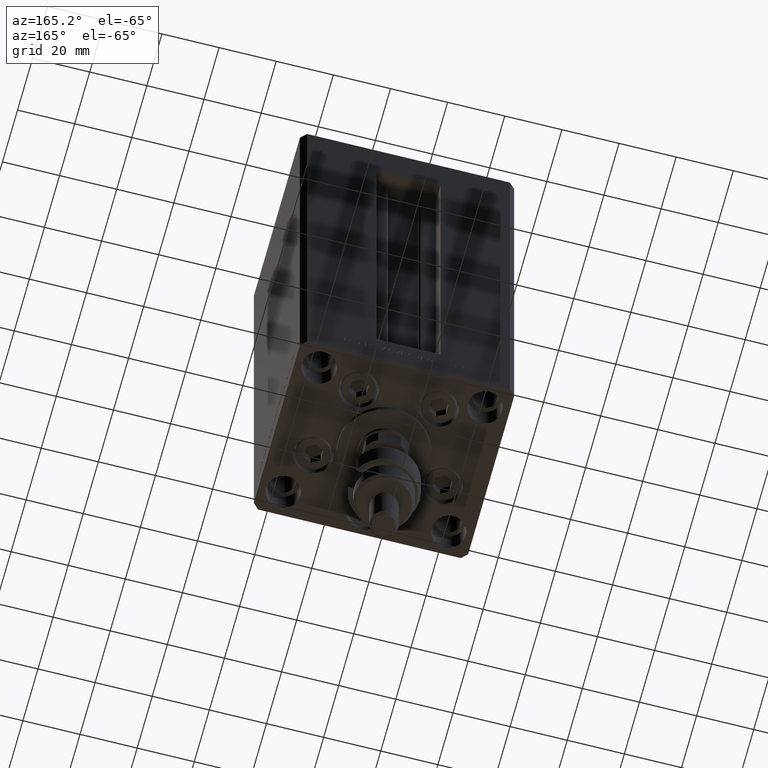
[diagram: clean part render]
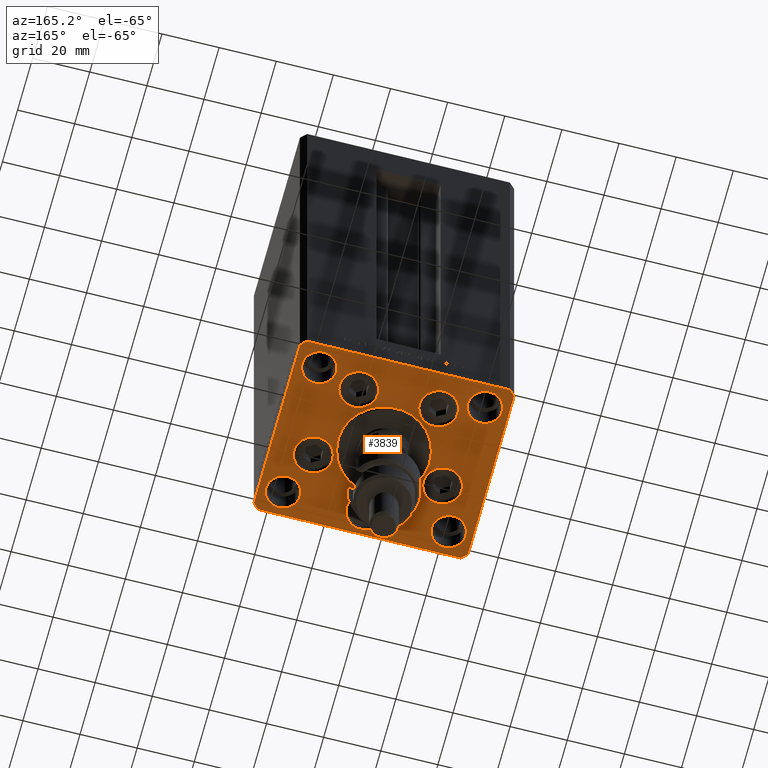
[diagram: same view with one face highlighted and labeled with its STEP entity id]
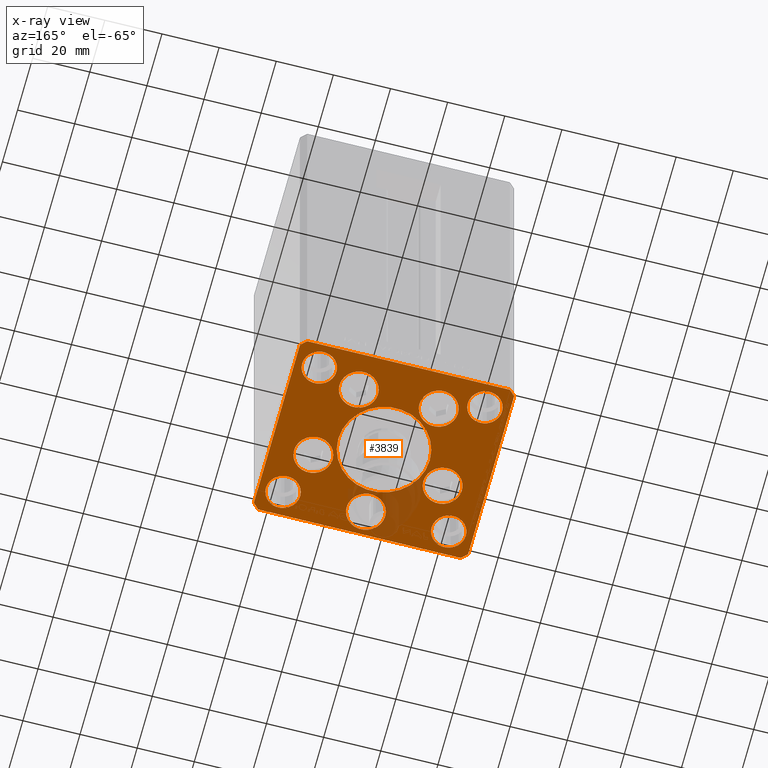
[diagram: x-ray of the same camera — body ghosted, the highlighted face saturated]
A machine part, auxiliary view. The second image highlights one B-rep face of the part: STEP entity #3839.
The next image is the same camera in x-ray: the body ghosted, the highlighted face saturated — about 7% of this face is hidden behind the body in this view.
In plain terms, the highlighted planar face has unit normal (0, 0, -1).
Its self-contained STEP definition (entity closure, byte-faithful):
#2 = CARTESIAN_POINT ( 'NONE',  ( -37.50000000000000000, -30.50000000000004263, 0.000000000000000000 ) ) ;
#47 = DIRECTION ( 'NONE',  ( -0.000000000000000000, 0.000000000000000000, 1.000000000000000000 ) ) ;
#294 = CARTESIAN_POINT ( 'NONE',  ( -29.00000000000000000, 24.00000000000000711, 0.000000000000000000 ) ) ;
#399 = DIRECTION ( 'NONE',  ( 0.000000000000000000, 0.000000000000000000, 1.000000000000000000 ) ) ;
#1053 = CARTESIAN_POINT ( 'NONE',  ( -37.50000000000000000, -30.50000000000004263, 0.000000000000000000 ) ) ;
#1242 = CARTESIAN_POINT ( 'NONE',  ( 0.000000000000000000, -24.00000000000001066, 0.000000000000000000 ) ) ;
#1584 = DIRECTION ( 'NONE',  ( 1.000000000000000000, 1.172770800660376149E-15, 0.000000000000000000 ) ) ;
#1617 = VERTEX_POINT ( 'NONE', #45623 ) ;
#1886 = CARTESIAN_POINT ( 'NONE',  ( 23.00000000000000711, -23.99999999999999645, 0.000000000000000000 ) ) ;
#1946 = EDGE_CURVE ( 'NONE', #15458, #21228, #35231, .T. ) ;
#2140 = CARTESIAN_POINT ( 'NONE',  ( -7.241068579633241242, 19.50000000000000000, 0.000000000000000000 ) ) ;
#2332 = LINE ( 'NONE', #10571, #41514 ) ;
#3001 = DIRECTION ( 'NONE',  ( 0.7071067811865463515, 0.7071067811865487940, 0.000000000000000000 ) ) ;
#3839 = ADVANCED_FACE ( 'NONE', ( #50193, #30693, #46338, #6256, #26323, #41980, #11135, #37362, #34282, #46089, #10887 ), #27075, .T. ) ;
#3920 = CARTESIAN_POINT ( 'NONE',  ( -29.37741699796953654, -8.000000000000000000, 0.000000000000000000 ) ) ;
#4396 = DIRECTION ( 'NONE',  ( -1.000000000000000000, -1.954618001100627573E-16, 0.000000000000000000 ) ) ;
#4409 = EDGE_CURVE ( 'NONE', #7306, #36765, #28787, .T. ) ;
#4423 = CARTESIAN_POINT ( 'NONE',  ( 0.000000000000000000, 0.000000000000000000, 0.000000000000000000 ) ) ;
#4595 = CARTESIAN_POINT ( 'NONE',  ( 35.50000000000001421, -32.49999999999992184, 0.000000000000000000 ) ) ;
#4623 = AXIS2_PLACEMENT_3D ( 'NONE', #44744, #9526, #25228 ) ;
#4839 = DIRECTION ( 'NONE',  ( 0.000000000000000000, 0.000000000000000000, 1.000000000000000000 ) ) ;
#5037 = CARTESIAN_POINT ( 'NONE',  ( -20.74106857963324302, 19.50000000000000000, 0.000000000000000000 ) ) ;
#5355 = EDGE_LOOP ( 'NONE', ( #35478, #14513 ) ) ;
#5447 = CARTESIAN_POINT ( 'NONE',  ( -35.50000000000001421, -32.50000000000000711, 0.000000000000000000 ) ) ;
#5790 = CIRCLE ( 'NONE', #40251, 6.750000000000000000 ) ;
#5800 = AXIS2_PLACEMENT_3D ( 'NONE', #46483, #26731, #38784 ) ;
#5864 = DIRECTION ( 'NONE',  ( 0.000000000000000000, 0.000000000000000000, 1.000000000000000000 ) ) ;
#5941 = AXIS2_PLACEMENT_3D ( 'NONE', #25589, #21983, #25078 ) ;
#6030 = VECTOR ( 'NONE', #30248, 1000.000000000000000 ) ;
#6256 = FACE_BOUND ( 'NONE', #43877, .T. ) ;
#6299 = ORIENTED_EDGE ( 'NONE', *, *, #48997, .F. ) ;
#6327 = EDGE_LOOP ( 'NONE', ( #17307, #9094, #23147, #7057, #11703, #28510, #10873, #12891 ) ) ;
#6527 = VERTEX_POINT ( 'NONE', #22119 ) ;
#6918 = AXIS2_PLACEMENT_3D ( 'NONE', #294, #50438, #35256 ) ;
#7057 = ORIENTED_EDGE ( 'NONE', *, *, #31710, .T. ) ;
#7240 = AXIS2_PLACEMENT_3D ( 'NONE', #35620, #399, #35866 ) ;
#7306 = VERTEX_POINT ( 'NONE', #47139 ) ;
#7446 = VERTEX_POINT ( 'NONE', #33494 ) ;
#7509 = VERTEX_POINT ( 'NONE', #26577 ) ;
#7721 = CIRCLE ( 'NONE', #6918, 6.000000000000001776 ) ;
#7726 = ORIENTED_EDGE ( 'NONE', *, *, #37196, .F. ) ;
#8069 = ORIENTED_EDGE ( 'NONE', *, *, #4409, .F. ) ;
#8167 = AXIS2_PLACEMENT_3D ( 'NONE', #34091, #25621, #9651 ) ;
#8198 = DIRECTION ( 'NONE',  ( 0.000000000000000000, 0.000000000000000000, 1.000000000000000000 ) ) ;
#8369 = VERTEX_POINT ( 'NONE', #41535 ) ;
#8388 = CARTESIAN_POINT ( 'NONE',  ( -35.50000000000000711, 32.49999999999997868, 0.000000000000000000 ) ) ;
#8416 = CARTESIAN_POINT ( 'NONE',  ( -22.62741699796953299, -8.000000000000000000, 0.000000000000000000 ) ) ;
#8642 = VERTEX_POINT ( 'NONE', #2140 ) ;
#8694 = VECTOR ( 'NONE', #29593, 1000.000000000000000 ) ;
#8842 = AXIS2_PLACEMENT_3D ( 'NONE', #41067, #18203, #45693 ) ;
#9094 = ORIENTED_EDGE ( 'NONE', *, *, #35499, .T. ) ;
#9526 = DIRECTION ( 'NONE',  ( 0.000000000000000000, 0.000000000000000000, 1.000000000000000000 ) ) ;
#9590 = VERTEX_POINT ( 'NONE', #50462 ) ;
#9651 = DIRECTION ( 'NONE',  ( 1.000000000000000000, 0.000000000000000000, 0.000000000000000000 ) ) ;
#10177 = CARTESIAN_POINT ( 'NONE',  ( 0.000000000000000000, -6.938893903907228378E-15, 0.000000000000000000 ) ) ;
#10286 = EDGE_LOOP ( 'NONE', ( #34785, #44482 ) ) ;
#10360 = CIRCLE ( 'NONE', #39083, 6.750000000001552536 ) ;
#10571 = CARTESIAN_POINT ( 'NONE',  ( 37.50000000000000711, -30.49999999999992895, 0.000000000000000000 ) ) ;
#10608 = VERTEX_POINT ( 'NONE', #47171 ) ;
#10844 = VECTOR ( 'NONE', #36651, 1000.000000000000000 ) ;
#10873 = ORIENTED_EDGE ( 'NONE', *, *, #11088, .T. ) ;
#10887 = FACE_OUTER_BOUND ( 'NONE', #6327, .T. ) ;
#10968 = CIRCLE ( 'NONE', #34746, 6.750000000001552536 ) ;
#11088 = EDGE_CURVE ( 'NONE', #47593, #41637, #32057, .T. ) ;
#11100 = CARTESIAN_POINT ( 'NONE',  ( 37.50000000000000711, -30.49999999999992895, 0.000000000000000000 ) ) ;
#11135 = FACE_BOUND ( 'NONE', #5355, .T. ) ;
#11307 = VERTEX_POINT ( 'NONE', #11100 ) ;
#11703 = ORIENTED_EDGE ( 'NONE', *, *, #27699, .T. ) ;
#11738 = EDGE_CURVE ( 'NONE', #40236, #32317, #45323, .T. ) ;
#11911 = AXIS2_PLACEMENT_3D ( 'NONE', #8416, #47721, #28708 ) ;
#12206 = DIRECTION ( 'NONE',  ( 0.000000000000000000, 0.000000000000000000, 1.000000000000000000 ) ) ;
#12427 = EDGE_CURVE ( 'NONE', #44794, #47593, #31151, .T. ) ;
#12891 = ORIENTED_EDGE ( 'NONE', *, *, #28415, .T. ) ;
#13445 = AXIS2_PLACEMENT_3D ( 'NONE', #34943, #8198, #50611 ) ;
#14191 = DIRECTION ( 'NONE',  ( 0.000000000000000000, 0.000000000000000000, 1.000000000000000000 ) ) ;
#14279 = ORIENTED_EDGE ( 'NONE', *, *, #39720, .F. ) ;
#14513 = ORIENTED_EDGE ( 'NONE', *, *, #11738, .F. ) ;
#14975 = EDGE_LOOP ( 'NONE', ( #18029, #14279 ) ) ;
#15040 = EDGE_CURVE ( 'NONE', #24973, #24400, #18896, .T. ) ;
#15326 = AXIS2_PLACEMENT_3D ( 'NONE', #28156, #12206, #20192 ) ;
#15435 = CARTESIAN_POINT ( 'NONE',  ( 29.00000000000000000, 24.00000000000000355, 0.000000000000000000 ) ) ;
#15458 = VERTEX_POINT ( 'NONE', #19258 ) ;
#15914 = CIRCLE ( 'NONE', #20028, 6.000000000000001776 ) ;
#16201 = VECTOR ( 'NONE', #1584, 1000.000000000000000 ) ;
#16442 = EDGE_LOOP ( 'NONE', ( #6299, #27962 ) ) ;
#16487 = EDGE_CURVE ( 'NONE', #40775, #8642, #32063, .T. ) ;
#17307 = ORIENTED_EDGE ( 'NONE', *, *, #36949, .T. ) ;
#17320 = VERTEX_POINT ( 'NONE', #34638 ) ;
#18029 = ORIENTED_EDGE ( 'NONE', *, *, #40854, .F. ) ;
#18203 = DIRECTION ( 'NONE',  ( 0.000000000000000000, 0.000000000000000000, 1.000000000000000000 ) ) ;
#18742 = CARTESIAN_POINT ( 'NONE',  ( 35.00000000000000000, 24.00000000000000355, 0.000000000000000000 ) ) ;
#18896 = CIRCLE ( 'NONE', #29570, 6.749999999999999112 ) ;
#19232 = VECTOR ( 'NONE', #4396, 1000.000000000000000 ) ;
#19258 = CARTESIAN_POINT ( 'NONE',  ( 15.87741699796952410, -8.000000000000000000, 0.000000000000000000 ) ) ;
#19600 = DIRECTION ( 'NONE',  ( 1.000000000000000000, 0.000000000000000000, 0.000000000000000000 ) ) ;
#19784 = DIRECTION ( 'NONE',  ( 0.000000000000000000, 0.000000000000000000, 1.000000000000000000 ) ) ;
#19885 = ORIENTED_EDGE ( 'NONE', *, *, #28509, .F. ) ;
#19897 = ORIENTED_EDGE ( 'NONE', *, *, #36879, .F. ) ;
#20028 = AXIS2_PLACEMENT_3D ( 'NONE', #15435, #31379, #27522 ) ;
#20069 = VECTOR ( 'NONE', #31167, 1000.000000000000000 ) ;
#20192 = DIRECTION ( 'NONE',  ( 1.000000000000000000, 0.000000000000000000, 0.000000000000000000 ) ) ;
#20479 = DIRECTION ( 'NONE',  ( 1.000000000000000000, 0.000000000000000000, 0.000000000000000000 ) ) ;
#20613 = LINE ( 'NONE', #1053, #8694 ) ;
#20817 = DIRECTION ( 'NONE',  ( 0.000000000000000000, 0.000000000000000000, 1.000000000000000000 ) ) ;
#21147 = CARTESIAN_POINT ( 'NONE',  ( 29.37741699796954364, -8.000000000000000000, 0.000000000000000000 ) ) ;
#21228 = VERTEX_POINT ( 'NONE', #21147 ) ;
#21315 = EDGE_LOOP ( 'NONE', ( #19885, #34054 ) ) ;
#21370 = AXIS2_PLACEMENT_3D ( 'NONE', #4423, #47, #31929 ) ;
#21673 = CIRCLE ( 'NONE', #13445, 6.749999999999997335 ) ;
#21702 = DIRECTION ( 'NONE',  ( 0.000000000000000000, 0.000000000000000000, 1.000000000000000000 ) ) ;
#21983 = DIRECTION ( 'NONE',  ( 0.000000000000000000, 0.000000000000000000, 1.000000000000000000 ) ) ;
#22029 = EDGE_LOOP ( 'NONE', ( #37445, #40663 ) ) ;
#22119 = CARTESIAN_POINT ( 'NONE',  ( 37.50000000000000711, 30.50000000000001421, 0.000000000000000000 ) ) ;
#22623 = CARTESIAN_POINT ( 'NONE',  ( -6.750000000001552536, -24.00000000000001066, 0.000000000000000000 ) ) ;
#23147 = ORIENTED_EDGE ( 'NONE', *, *, #33163, .T. ) ;
#23209 = EDGE_CURVE ( 'NONE', #36765, #7306, #38733, .T. ) ;
#23464 = DIRECTION ( 'NONE',  ( 0.000000000000000000, 0.000000000000000000, 1.000000000000000000 ) ) ;
#23548 = VERTEX_POINT ( 'NONE', #1886 ) ;
#23707 = CARTESIAN_POINT ( 'NONE',  ( -13.99106857963324124, 19.50000000000000000, 0.000000000000000000 ) ) ;
#23848 = ORIENTED_EDGE ( 'NONE', *, *, #1946, .F. ) ;
#24200 = CARTESIAN_POINT ( 'NONE',  ( 35.50000000000000000, 32.49999999999999289, 0.000000000000000000 ) ) ;
#24400 = VERTEX_POINT ( 'NONE', #3920 ) ;
#24973 = VERTEX_POINT ( 'NONE', #50017 ) ;
#25078 = DIRECTION ( 'NONE',  ( 1.000000000000000000, 0.000000000000000000, 0.000000000000000000 ) ) ;
#25190 = CIRCLE ( 'NONE', #15326, 5.999999999999998224 ) ;
#25228 = DIRECTION ( 'NONE',  ( 1.000000000000000000, 0.000000000000000000, 0.000000000000000000 ) ) ;
#25589 = CARTESIAN_POINT ( 'NONE',  ( 29.00000000000000000, 24.00000000000000355, 0.000000000000000000 ) ) ;
#25621 = DIRECTION ( 'NONE',  ( 0.000000000000000000, 0.000000000000000000, 1.000000000000000000 ) ) ;
#25969 = VECTOR ( 'NONE', #3001, 1000.000000000000000 ) ;
#26188 = DIRECTION ( 'NONE',  ( 1.000000000000000000, 0.000000000000000000, 0.000000000000000000 ) ) ;
#26323 = FACE_BOUND ( 'NONE', #44936, .T. ) ;
#26542 = VERTEX_POINT ( 'NONE', #40198 ) ;
#26577 = CARTESIAN_POINT ( 'NONE',  ( -23.00000000000000000, -23.99999999999999645, 0.000000000000000000 ) ) ;
#26673 = EDGE_CURVE ( 'NONE', #41500, #44114, #10968, .T. ) ;
#26731 = DIRECTION ( 'NONE',  ( 0.000000000000000000, 0.000000000000000000, 1.000000000000000000 ) ) ;
#27075 = PLANE ( 'NONE',  #21370 ) ;
#27149 = EDGE_CURVE ( 'NONE', #32317, #40236, #15914, .T. ) ;
#27522 = DIRECTION ( 'NONE',  ( 1.000000000000000000, 0.000000000000000000, 0.000000000000000000 ) ) ;
#27699 = EDGE_CURVE ( 'NONE', #6527, #44794, #38211, .T. ) ;
#27753 = DIRECTION ( 'NONE',  ( 1.000000000000000000, 0.000000000000000000, 0.000000000000000000 ) ) ;
#27810 = EDGE_CURVE ( 'NONE', #26542, #1617, #21673, .T. ) ;
#27843 = CARTESIAN_POINT ( 'NONE',  ( 37.50000000000000711, 30.50000000000001421, 0.000000000000000000 ) ) ;
#27962 = ORIENTED_EDGE ( 'NONE', *, *, #16487, .F. ) ;
#28116 = ORIENTED_EDGE ( 'NONE', *, *, #43387, .F. ) ;
#28156 = CARTESIAN_POINT ( 'NONE',  ( 29.00000000000000355, -23.99999999999999645, 0.000000000000000000 ) ) ;
#28204 = CARTESIAN_POINT ( 'NONE',  ( -29.00000000000000000, 24.00000000000000711, 0.000000000000000000 ) ) ;
#28415 = EDGE_CURVE ( 'NONE', #41637, #44629, #43475, .T. ) ;
#28509 = EDGE_CURVE ( 'NONE', #8369, #9590, #7721, .T. ) ;
#28510 = ORIENTED_EDGE ( 'NONE', *, *, #12427, .T. ) ;
#28708 = DIRECTION ( 'NONE',  ( 1.000000000000000000, 0.000000000000000000, 0.000000000000000000 ) ) ;
#28787 = CIRCLE ( 'NONE', #35346, 16.00000000000000355 ) ;
#28968 = VERTEX_POINT ( 'NONE', #4595 ) ;
#29364 = DIRECTION ( 'NONE',  ( 1.000000000000000000, 0.000000000000000000, 0.000000000000000000 ) ) ;
#29570 = AXIS2_PLACEMENT_3D ( 'NONE', #48869, #14191, #29364 ) ;
#29593 = DIRECTION ( 'NONE',  ( 0.7071067811865512365, -0.7071067811865439090, 0.000000000000000000 ) ) ;
#29804 = CARTESIAN_POINT ( 'NONE',  ( 6.750000000001552536, -24.00000000000001066, 0.000000000000000000 ) ) ;
#30243 = EDGE_CURVE ( 'NONE', #24400, #24973, #44727, .T. ) ;
#30248 = DIRECTION ( 'NONE',  ( -0.7071067811865524577, 0.7071067811865426878, 0.000000000000000000 ) ) ;
#30328 = AXIS2_PLACEMENT_3D ( 'NONE', #31099, #19784, #27753 ) ;
#30693 = FACE_BOUND ( 'NONE', #16442, .T. ) ;
#30920 = CIRCLE ( 'NONE', #4623, 5.999999999999998224 ) ;
#30963 = CIRCLE ( 'NONE', #47320, 6.749999999999997335 ) ;
#31033 = CIRCLE ( 'NONE', #8842, 6.000000000000001776 ) ;
#31099 = CARTESIAN_POINT ( 'NONE',  ( 22.62741699796953299, -8.000000000000000000, 0.000000000000000000 ) ) ;
#31151 = LINE ( 'NONE', #24200, #19232 ) ;
#31167 = DIRECTION ( 'NONE',  ( 2.275047181608926165E-16, -1.000000000000000000, 0.000000000000000000 ) ) ;
#31379 = DIRECTION ( 'NONE',  ( 0.000000000000000000, 0.000000000000000000, 1.000000000000000000 ) ) ;
#31710 = EDGE_CURVE ( 'NONE', #11307, #6527, #2332, .T. ) ;
#31929 = DIRECTION ( 'NONE',  ( 1.000000000000000000, 0.000000000000000000, 0.000000000000000000 ) ) ;
#32057 = LINE ( 'NONE', #32790, #10844 ) ;
#32063 = CIRCLE ( 'NONE', #5800, 6.750000000000000000 ) ;
#32317 = VERTEX_POINT ( 'NONE', #18742 ) ;
#32789 = DIRECTION ( 'NONE',  ( 1.000000000000000000, 0.000000000000000000, 0.000000000000000000 ) ) ;
#32790 = CARTESIAN_POINT ( 'NONE',  ( -35.50000000000000711, 32.49999999999997868, 0.000000000000000000 ) ) ;
#33124 = CARTESIAN_POINT ( 'NONE',  ( 0.000000000000000000, -6.938893903907228378E-15, 0.000000000000000000 ) ) ;
#33163 = EDGE_CURVE ( 'NONE', #28968, #11307, #37449, .T. ) ;
#33494 = CARTESIAN_POINT ( 'NONE',  ( -35.00000000000000000, -23.99999999999999645, 0.000000000000000000 ) ) ;
#33595 = CIRCLE ( 'NONE', #48362, 6.000000000000001776 ) ;
#34054 = ORIENTED_EDGE ( 'NONE', *, *, #40791, .F. ) ;
#34091 = CARTESIAN_POINT ( 'NONE',  ( -29.00000000000000000, -23.99999999999999645, 0.000000000000000000 ) ) ;
#34282 = FACE_BOUND ( 'NONE', #14975, .T. ) ;
#34638 = CARTESIAN_POINT ( 'NONE',  ( -35.50000000000001421, -32.50000000000000711, 0.000000000000000000 ) ) ;
#34746 = AXIS2_PLACEMENT_3D ( 'NONE', #45338, #21702, #45837 ) ;
#34775 = CARTESIAN_POINT ( 'NONE',  ( -37.50000000000001421, 30.50000000000000000, 0.000000000000000000 ) ) ;
#34785 = ORIENTED_EDGE ( 'NONE', *, *, #15040, .F. ) ;
#34943 = CARTESIAN_POINT ( 'NONE',  ( 13.99106857963324124, 19.50000000000000000, 0.000000000000000000 ) ) ;
#35124 = ORIENTED_EDGE ( 'NONE', *, *, #26673, .F. ) ;
#35231 = CIRCLE ( 'NONE', #30328, 6.750000000000009770 ) ;
#35242 = CIRCLE ( 'NONE', #8167, 6.000000000000001776 ) ;
#35256 = DIRECTION ( 'NONE',  ( 1.000000000000000000, 0.000000000000000000, 0.000000000000000000 ) ) ;
#35346 = AXIS2_PLACEMENT_3D ( 'NONE', #33124, #5864, #26188 ) ;
#35478 = ORIENTED_EDGE ( 'NONE', *, *, #27149, .F. ) ;
#35499 = EDGE_CURVE ( 'NONE', #17320, #28968, #40676, .T. ) ;
#35620 = CARTESIAN_POINT ( 'NONE',  ( 22.62741699796953299, -8.000000000000000000, 0.000000000000000000 ) ) ;
#35866 = DIRECTION ( 'NONE',  ( 1.000000000000000000, 0.000000000000000000, 0.000000000000000000 ) ) ;
#36276 = CARTESIAN_POINT ( 'NONE',  ( 23.00000000000000000, 24.00000000000000355, 0.000000000000000000 ) ) ;
#36651 = DIRECTION ( 'NONE',  ( -0.7071067811865524577, -0.7071067811865426878, 0.000000000000000000 ) ) ;
#36765 = VERTEX_POINT ( 'NONE', #43743 ) ;
#36879 = EDGE_CURVE ( 'NONE', #10608, #23548, #30920, .T. ) ;
#36949 = EDGE_CURVE ( 'NONE', #44629, #17320, #20613, .T. ) ;
#37158 = ORIENTED_EDGE ( 'NONE', *, *, #37535, .F. ) ;
#37196 = EDGE_CURVE ( 'NONE', #44114, #41500, #10360, .T. ) ;
#37362 = FACE_BOUND ( 'NONE', #21315, .T. ) ;
#37420 = DIRECTION ( 'NONE',  ( 0.000000000000000000, 0.000000000000000000, 1.000000000000000000 ) ) ;
#37445 = ORIENTED_EDGE ( 'NONE', *, *, #27810, .F. ) ;
#37449 = LINE ( 'NONE', #38223, #25969 ) ;
#37535 = EDGE_CURVE ( 'NONE', #23548, #10608, #25190, .T. ) ;
#37760 = CARTESIAN_POINT ( 'NONE',  ( 35.50000000000000000, 32.49999999999999289, 0.000000000000000000 ) ) ;
#38169 = EDGE_CURVE ( 'NONE', #1617, #26542, #30963, .T. ) ;
#38211 = LINE ( 'NONE', #27843, #6030 ) ;
#38223 = CARTESIAN_POINT ( 'NONE',  ( 35.50000000000001421, -32.49999999999992184, 0.000000000000000000 ) ) ;
#38733 = CIRCLE ( 'NONE', #39566, 16.00000000000000355 ) ;
#38784 = DIRECTION ( 'NONE',  ( 1.000000000000000000, 0.000000000000000000, 0.000000000000000000 ) ) ;
#39083 = AXIS2_PLACEMENT_3D ( 'NONE', #1242, #4839, #40061 ) ;
#39566 = AXIS2_PLACEMENT_3D ( 'NONE', #10177, #37420, #32789 ) ;
#39720 = EDGE_CURVE ( 'NONE', #7446, #7509, #31033, .T. ) ;
#40061 = DIRECTION ( 'NONE',  ( 1.000000000000000000, 0.000000000000000000, 0.000000000000000000 ) ) ;
#40074 = CARTESIAN_POINT ( 'NONE',  ( 13.99106857963324124, 19.50000000000000000, 0.000000000000000000 ) ) ;
#40198 = CARTESIAN_POINT ( 'NONE',  ( 20.74106857963323947, 19.50000000000000000, 0.000000000000000000 ) ) ;
#40236 = VERTEX_POINT ( 'NONE', #36276 ) ;
#40251 = AXIS2_PLACEMENT_3D ( 'NONE', #23707, #23464, #19600 ) ;
#40663 = ORIENTED_EDGE ( 'NONE', *, *, #38169, .F. ) ;
#40676 = LINE ( 'NONE', #5447, #16201 ) ;
#40775 = VERTEX_POINT ( 'NONE', #5037 ) ;
#40791 = EDGE_CURVE ( 'NONE', #9590, #8369, #33595, .T. ) ;
#40854 = EDGE_CURVE ( 'NONE', #7509, #7446, #35242, .T. ) ;
#41067 = CARTESIAN_POINT ( 'NONE',  ( -29.00000000000000000, -23.99999999999999645, 0.000000000000000000 ) ) ;
#41423 = DIRECTION ( 'NONE',  ( 0.000000000000000000, 1.000000000000000000, 0.000000000000000000 ) ) ;
#41500 = VERTEX_POINT ( 'NONE', #29804 ) ;
#41514 = VECTOR ( 'NONE', #41423, 1000.000000000000000 ) ;
#41535 = CARTESIAN_POINT ( 'NONE',  ( -23.00000000000000000, 24.00000000000000711, 0.000000000000000000 ) ) ;
#41637 = VERTEX_POINT ( 'NONE', #50573 ) ;
#41898 = ORIENTED_EDGE ( 'NONE', *, *, #23209, .F. ) ;
#41980 = FACE_BOUND ( 'NONE', #10286, .T. ) ;
#43387 = EDGE_CURVE ( 'NONE', #21228, #15458, #49087, .T. ) ;
#43475 = LINE ( 'NONE', #34775, #20069 ) ;
#43743 = CARTESIAN_POINT ( 'NONE',  ( 16.00000000000000355, -4.979459025271462852E-15, 0.000000000000000000 ) ) ;
#43868 = DIRECTION ( 'NONE',  ( 0.000000000000000000, 0.000000000000000000, 1.000000000000000000 ) ) ;
#43877 = EDGE_LOOP ( 'NONE', ( #28116, #23848 ) ) ;
#44114 = VERTEX_POINT ( 'NONE', #22623 ) ;
#44482 = ORIENTED_EDGE ( 'NONE', *, *, #30243, .F. ) ;
#44629 = VERTEX_POINT ( 'NONE', #2 ) ;
#44727 = CIRCLE ( 'NONE', #11911, 6.749999999999999112 ) ;
#44744 = CARTESIAN_POINT ( 'NONE',  ( 29.00000000000000355, -23.99999999999999645, 0.000000000000000000 ) ) ;
#44794 = VERTEX_POINT ( 'NONE', #37760 ) ;
#44936 = EDGE_LOOP ( 'NONE', ( #35124, #7726 ) ) ;
#45323 = CIRCLE ( 'NONE', #5941, 6.000000000000001776 ) ;
#45338 = CARTESIAN_POINT ( 'NONE',  ( 0.000000000000000000, -24.00000000000001066, 0.000000000000000000 ) ) ;
#45623 = CARTESIAN_POINT ( 'NONE',  ( 7.241068579633242130, 19.50000000000000000, 0.000000000000000000 ) ) ;
#45693 = DIRECTION ( 'NONE',  ( 1.000000000000000000, 0.000000000000000000, 0.000000000000000000 ) ) ;
#45837 = DIRECTION ( 'NONE',  ( 1.000000000000000000, 0.000000000000000000, 0.000000000000000000 ) ) ;
#46089 = FACE_BOUND ( 'NONE', #47722, .T. ) ;
#46338 = FACE_BOUND ( 'NONE', #22029, .T. ) ;
#46483 = CARTESIAN_POINT ( 'NONE',  ( -13.99106857963324124, 19.50000000000000000, 0.000000000000000000 ) ) ;
#47139 = CARTESIAN_POINT ( 'NONE',  ( -16.00000000000000355, -6.938893903907228378E-15, 0.000000000000000000 ) ) ;
#47171 = CARTESIAN_POINT ( 'NONE',  ( 35.00000000000000000, -23.99999999999999645, 0.000000000000000000 ) ) ;
#47261 = EDGE_LOOP ( 'NONE', ( #8069, #41898 ) ) ;
#47320 = AXIS2_PLACEMENT_3D ( 'NONE', #40074, #20817, #49045 ) ;
#47593 = VERTEX_POINT ( 'NONE', #8388 ) ;
#47721 = DIRECTION ( 'NONE',  ( 0.000000000000000000, 0.000000000000000000, 1.000000000000000000 ) ) ;
#47722 = EDGE_LOOP ( 'NONE', ( #19897, #37158 ) ) ;
#48362 = AXIS2_PLACEMENT_3D ( 'NONE', #28204, #43868, #20479 ) ;
#48869 = CARTESIAN_POINT ( 'NONE',  ( -22.62741699796953299, -8.000000000000000000, 0.000000000000000000 ) ) ;
#48997 = EDGE_CURVE ( 'NONE', #8642, #40775, #5790, .T. ) ;
#49045 = DIRECTION ( 'NONE',  ( 1.000000000000000000, 0.000000000000000000, 0.000000000000000000 ) ) ;
#49087 = CIRCLE ( 'NONE', #7240, 6.750000000000009770 ) ;
#50017 = CARTESIAN_POINT ( 'NONE',  ( -15.87741699796953476, -8.000000000000000000, 0.000000000000000000 ) ) ;
#50193 = FACE_BOUND ( 'NONE', #47261, .T. ) ;
#50438 = DIRECTION ( 'NONE',  ( 0.000000000000000000, 0.000000000000000000, 1.000000000000000000 ) ) ;
#50462 = CARTESIAN_POINT ( 'NONE',  ( -35.00000000000000000, 24.00000000000000711, 0.000000000000000000 ) ) ;
#50573 = CARTESIAN_POINT ( 'NONE',  ( -37.50000000000001421, 30.50000000000000000, 0.000000000000000000 ) ) ;
#50611 = DIRECTION ( 'NONE',  ( 1.000000000000000000, 0.000000000000000000, 0.000000000000000000 ) ) ;